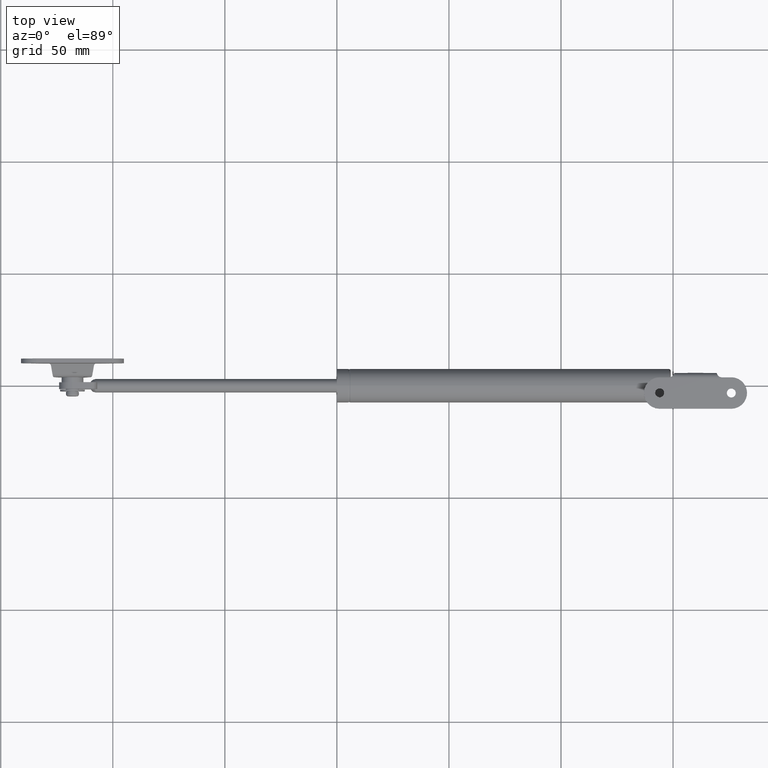
[diagram: clean part render]
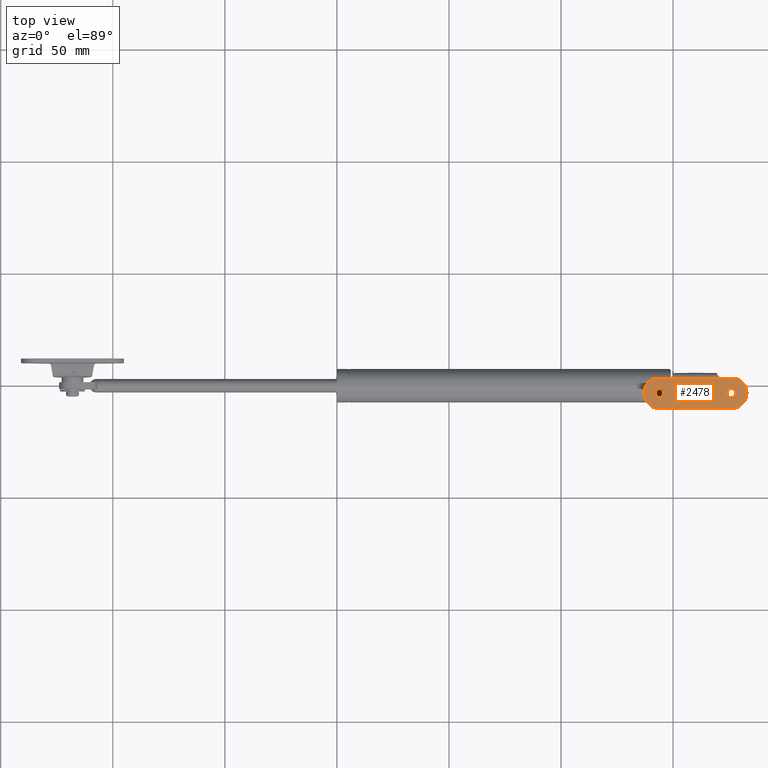
[diagram: same view with one face highlighted and labeled with its STEP entity id]
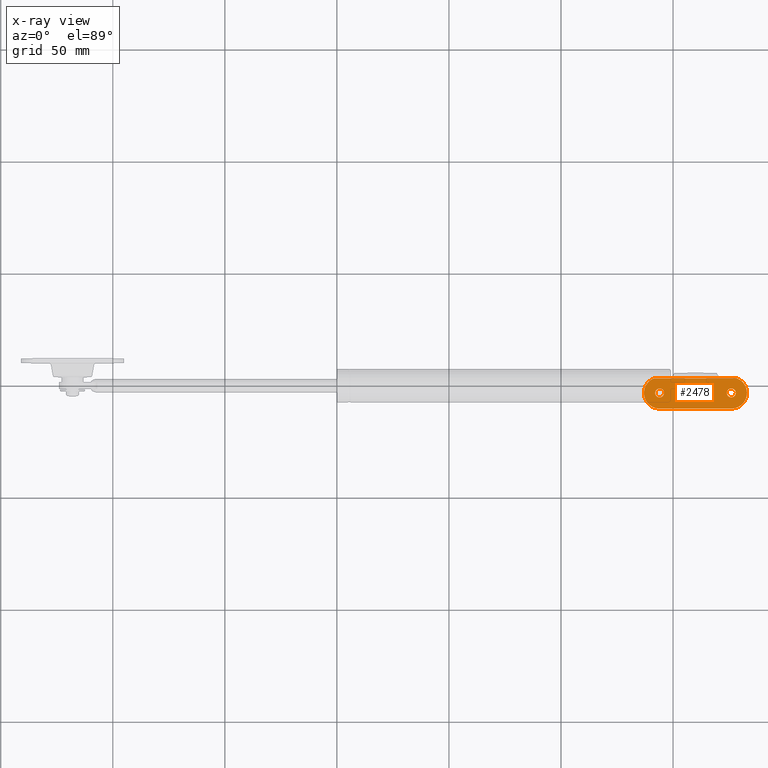
[diagram: x-ray of the same camera — body ghosted, the highlighted face saturated]
A machine part, top view. The second image highlights one B-rep face of the part: STEP entity #2478.
The next image is the same camera in x-ray: the body ghosted, the highlighted face saturated — about 0% of this face is hidden behind the body in this view.
In plain terms, the highlighted planar face has unit normal (-0, 0, -1).
Its self-contained STEP definition (entity closure, byte-faithful):
#151=LINE('',#4316,#293);
#155=LINE('',#4369,#297);
#293=VECTOR('',#3236,37.1961524227066);
#297=VECTOR('',#3244,32.);
#412=PLANE('',#2709);
#549=FACE_BOUND('',#830,.T.);
#550=FACE_BOUND('',#831,.T.);
#636=FACE_OUTER_BOUND('',#829,.T.);
#829=EDGE_LOOP('',(#1940,#1941,#1942,#1943));
#830=EDGE_LOOP('',(#1944));
#831=EDGE_LOOP('',(#1945));
#1017=CIRCLE('',#2710,7.);
#1018=CIRCLE('',#2711,7.);
#1019=CIRCLE('',#2712,2.);
#1020=CIRCLE('',#2713,2.);
#1222=VERTEX_POINT('',#4308);
#1223=VERTEX_POINT('',#4315);
#1231=VERTEX_POINT('',#4366);
#1232=VERTEX_POINT('',#4368);
#1233=VERTEX_POINT('',#4371);
#1234=VERTEX_POINT('',#4373);
#1487=EDGE_CURVE('',#1222,#1223,#151,.T.);
#1496=EDGE_CURVE('',#1231,#1222,#1017,.T.);
#1497=EDGE_CURVE('',#1232,#1231,#155,.T.);
#1498=EDGE_CURVE('',#1223,#1232,#1018,.T.);
#1499=EDGE_CURVE('',#1233,#1233,#1019,.T.);
#1500=EDGE_CURVE('',#1234,#1234,#1020,.T.);
#1940=ORIENTED_EDGE('',*,*,#1487,.F.);
#1941=ORIENTED_EDGE('',*,*,#1496,.F.);
#1942=ORIENTED_EDGE('',*,*,#1497,.F.);
#1943=ORIENTED_EDGE('',*,*,#1498,.F.);
#1944=ORIENTED_EDGE('',*,*,#1499,.T.);
#1945=ORIENTED_EDGE('',*,*,#1500,.T.);
#2478=ADVANCED_FACE('',(#636,#549,#550),#412,.F.);
#2709=AXIS2_PLACEMENT_3D('',#4365,#3240,#3241);
#2710=AXIS2_PLACEMENT_3D('',#4367,#3242,#3243);
#2711=AXIS2_PLACEMENT_3D('',#4370,#3245,#3246);
#2712=AXIS2_PLACEMENT_3D('',#4372,#3247,#3248);
#2713=AXIS2_PLACEMENT_3D('',#4374,#3249,#3250);
#3236=DIRECTION('',(-1.,0.,0.));
#3240=DIRECTION('center_axis',(0.,0.,1.));
#3241=DIRECTION('ref_axis',(1.,0.,0.));
#3242=DIRECTION('center_axis',(0.,0.,1.));
#3243=DIRECTION('ref_axis',(0.,-1.,0.));
#3244=DIRECTION('',(1.,-3.46944695195361E-17,0.));
#3245=DIRECTION('center_axis',(0.,0.,1.));
#3246=DIRECTION('ref_axis',(0.,1.,0.));
#3247=DIRECTION('center_axis',(0.,0.,1.));
#3248=DIRECTION('ref_axis',(1.,0.,0.));
#3249=DIRECTION('center_axis',(0.,0.,1.));
#3250=DIRECTION('ref_axis',(1.,0.,0.));
#4308=CARTESIAN_POINT('',(18.5980762113533,6.5,0.));
#4315=CARTESIAN_POINT('',(-18.5980762113533,6.5,0.));
#4316=CARTESIAN_POINT('',(1.00354373465368E-15,6.5,0.));
#4365=CARTESIAN_POINT('Origin',(0.,1.11756870305741E-15,0.));
#4366=CARTESIAN_POINT('',(16.,-7.,0.));
#4367=CARTESIAN_POINT('Origin',(16.,0.,0.));
#4368=CARTESIAN_POINT('',(-16.,-7.,0.));
#4369=CARTESIAN_POINT('',(-16.,-7.,0.));
#4370=CARTESIAN_POINT('Origin',(-16.,0.,0.));
#4371=CARTESIAN_POINT('',(14.,5.63337527607782E-15,0.));
#4372=CARTESIAN_POINT('Origin',(16.,5.8783046359073E-15,0.));
#4373=CARTESIAN_POINT('',(-18.,-2.44929359829471E-16,0.));
#4374=CARTESIAN_POINT('Origin',(-16.,0.,0.));